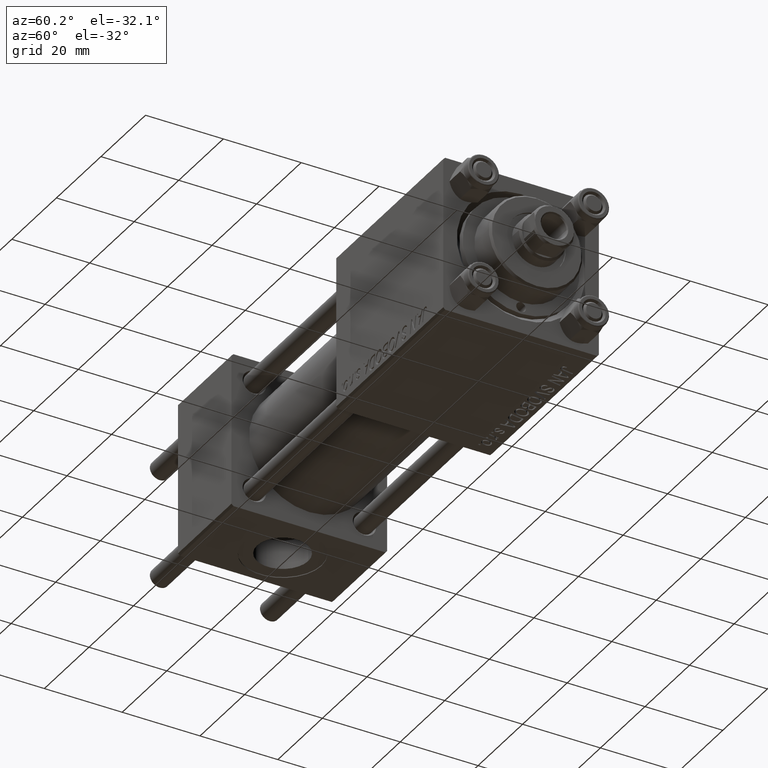
[diagram: clean part render]
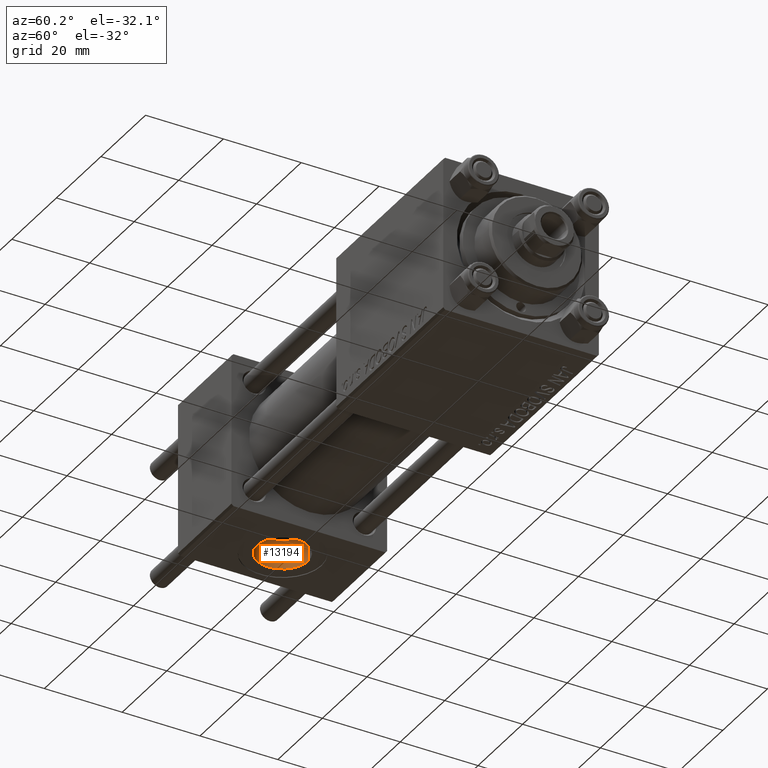
[diagram: same view with one face highlighted and labeled with its STEP entity id]
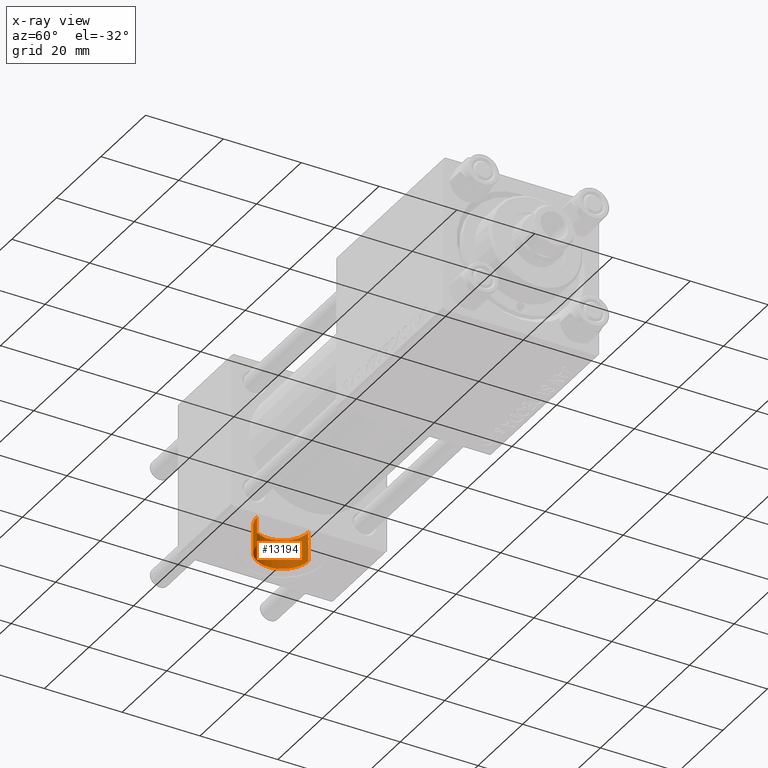
[diagram: x-ray of the same camera — body ghosted, the highlighted face saturated]
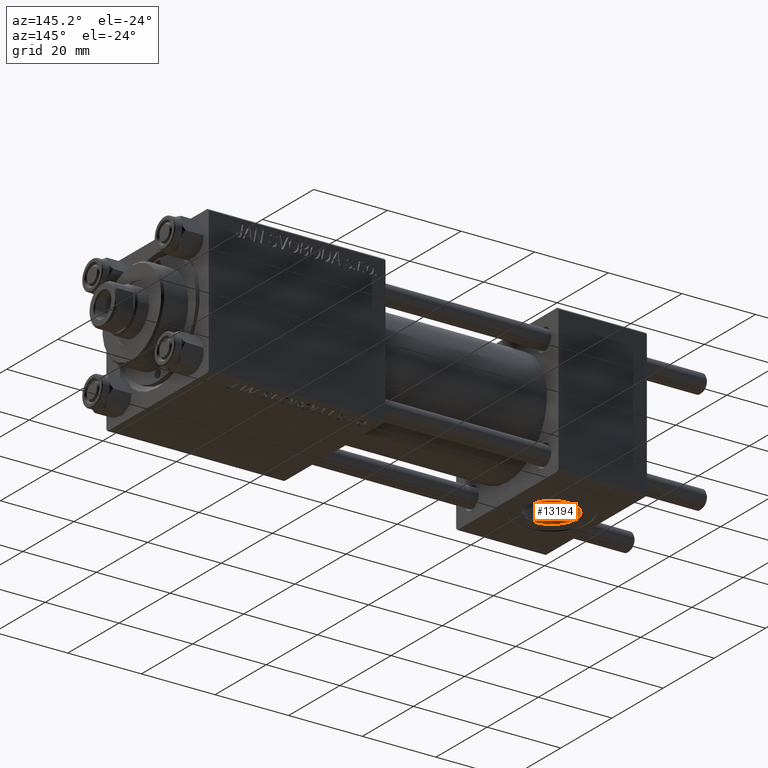
[diagram: same view with one face highlighted and labeled with its STEP entity id]
A machine part, auxiliary view. The second image highlights one B-rep face of the part: STEP entity #13194.
The next image is the same camera in x-ray: the body ghosted, the highlighted face saturated — about 0% of this face is hidden behind the body in this view.
A second angle (auxiliary view) of the same face is appended — the face is thin or edge-on in the first view.
In plain terms, the highlighted cylindrical surface (edge-blend (fillet) strip) has radius 6.58 mm, axis along (-0, -0, -1).
Its self-contained STEP definition (entity closure, byte-faithful):
#331 = DIRECTION ( 'NONE',  ( -0.000000000000000000, -1.734723475976806848E-16, -1.000000000000000000 ) ) ;
#538 = VERTEX_POINT ( 'NONE', #32419 ) ;
#666 = FACE_OUTER_BOUND ( 'NONE', #27096, .T. ) ;
#1386 = VERTEX_POINT ( 'NONE', #41090 ) ;
#2449 = ORIENTED_EDGE ( 'NONE', *, *, #39724, .T. ) ;
#3056 = VECTOR ( 'NONE', #331, 1000.000000000000000 ) ;
#3700 = CYLINDRICAL_SURFACE ( 'NONE', #36923, 6.580000000000000071 ) ;
#4064 = DIRECTION ( 'NONE',  ( -0.000000000000000000, 1.734723475976807587E-16, 1.000000000000000000 ) ) ;
#4415 = VERTEX_POINT ( 'NONE', #29751 ) ;
#7502 = DIRECTION ( 'NONE',  ( -0.000000000000000000, -1.734723475976806848E-16, -1.000000000000000000 ) ) ;
#9546 = VECTOR ( 'NONE', #7502, 1000.000000000000000 ) ;
#11881 = EDGE_CURVE ( 'NONE', #1386, #4415, #45758, .T. ) ;
#13194 = ADVANCED_FACE ( 'NONE', ( #666 ), #3700, .F. ) ;
#13275 = EDGE_CURVE ( 'NONE', #1386, #22492, #26712, .T. ) ;
#19980 = CARTESIAN_POINT ( 'NONE',  ( 12.00000000000000000, -3.610224928332204888E-15, -12.34000000000000696 ) ) ;
#20535 = CARTESIAN_POINT ( 'NONE',  ( 12.00000000000000000, -6.580000000000003624, -9.200000000000002842 ) ) ;
#22050 = ORIENTED_EDGE ( 'NONE', *, *, #28573, .T. ) ;
#22492 = VERTEX_POINT ( 'NONE', #25218 ) ;
#22822 = CIRCLE ( 'NONE', #35699, 6.580000000000000071 ) ;
#25218 = CARTESIAN_POINT ( 'NONE',  ( 12.00000000000000000, 6.579999999999994742, -19.80000000000000426 ) ) ;
#26712 = LINE ( 'NONE', #42070, #9546 ) ;
#27096 = EDGE_LOOP ( 'NONE', ( #48708, #2449, #22050, #28626 ) ) ;
#28573 = EDGE_CURVE ( 'NONE', #538, #22492, #22822, .T. ) ;
#28626 = ORIENTED_EDGE ( 'NONE', *, *, #13275, .F. ) ;
#29751 = CARTESIAN_POINT ( 'NONE',  ( 12.00000000000000000, -6.580000000000003624, -12.34000000000000519 ) ) ;
#32419 = CARTESIAN_POINT ( 'NONE',  ( 12.00000000000000000, -6.580000000000006288, -19.80000000000000426 ) ) ;
#34502 = DIRECTION ( 'NONE',  ( 0.000000000000000000, 1.000000000000000000, -2.636357866226150465E-16 ) ) ;
#35010 = CARTESIAN_POINT ( 'NONE',  ( 12.00000000000000000, -3.065521756875487066E-15, -9.200000000000004619 ) ) ;
#35269 = AXIS2_PLACEMENT_3D ( 'NONE', #19980, #4064, #42933 ) ;
#35699 = AXIS2_PLACEMENT_3D ( 'NONE', #36791, #40820, #49161 ) ;
#36791 = CARTESIAN_POINT ( 'NONE',  ( 12.00000000000000000, -4.904328641410902191E-15, -19.80000000000000426 ) ) ;
#36923 = AXIS2_PLACEMENT_3D ( 'NONE', #35010, #38795, #34502 ) ;
#38795 = DIRECTION ( 'NONE',  ( -0.000000000000000000, -1.734723475976806848E-16, -1.000000000000000000 ) ) ;
#39724 = EDGE_CURVE ( 'NONE', #4415, #538, #46795, .T. ) ;
#40820 = DIRECTION ( 'NONE',  ( 0.000000000000000000, -1.734723475976806848E-16, -1.000000000000000000 ) ) ;
#41090 = CARTESIAN_POINT ( 'NONE',  ( 12.00000000000000000, 6.579999999999996518, -12.34000000000000874 ) ) ;
#42070 = CARTESIAN_POINT ( 'NONE',  ( 12.00000000000000000, 6.579999999999996518, -9.200000000000006395 ) ) ;
#42933 = DIRECTION ( 'NONE',  ( 0.000000000000000000, 1.000000000000000000, -2.636357866226150465E-16 ) ) ;
#45758 = CIRCLE ( 'NONE', #35269, 6.580000000000000071 ) ;
#46795 = LINE ( 'NONE', #20535, #3056 ) ;
#48708 = ORIENTED_EDGE ( 'NONE', *, *, #11881, .T. ) ;
#49161 = DIRECTION ( 'NONE',  ( 0.000000000000000000, 1.000000000000000000, 0.000000000000000000 ) ) ;